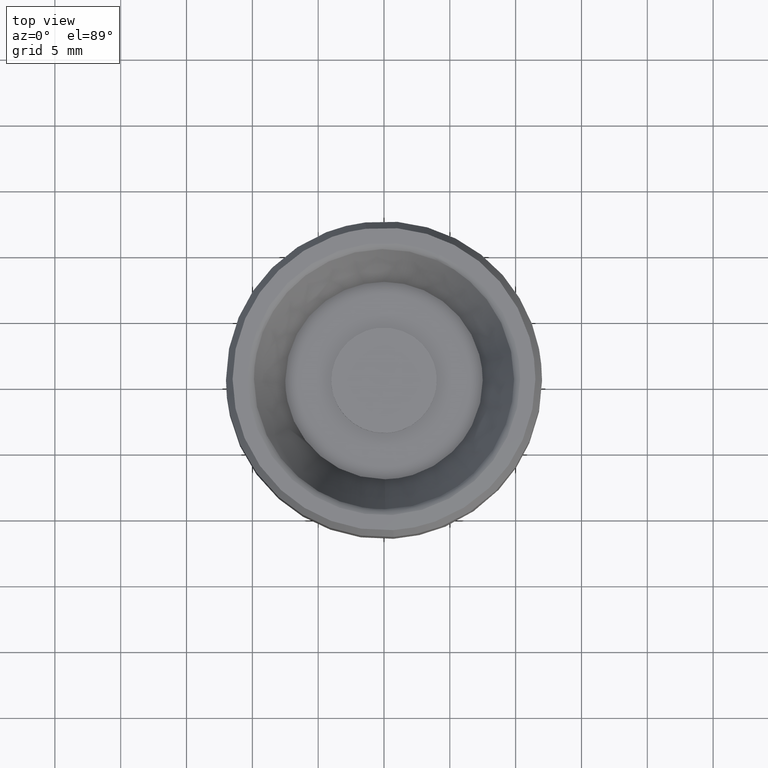
[diagram: clean part render]
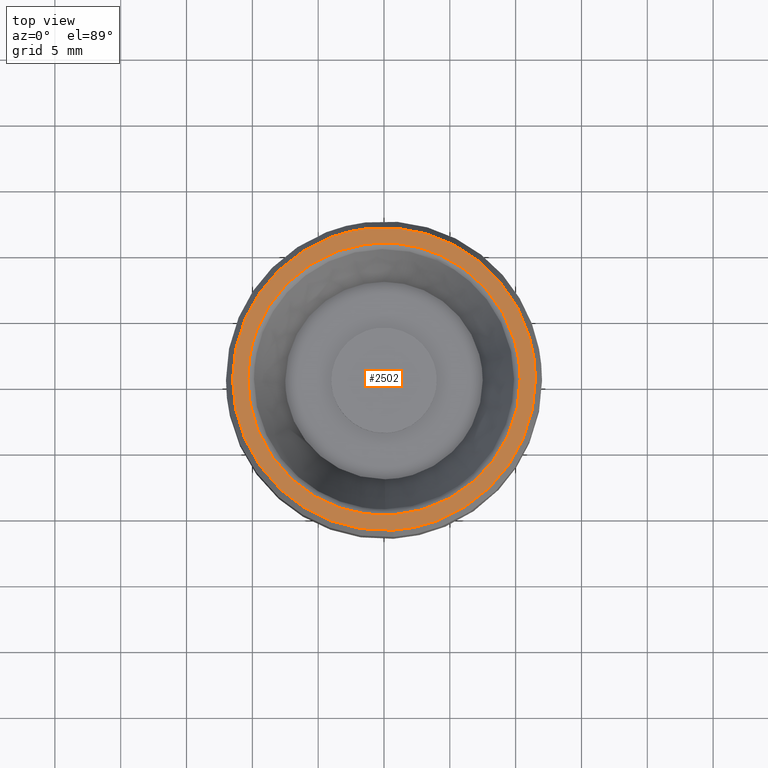
[diagram: same view with one face highlighted and labeled with its STEP entity id]
A machine part, top view. The second image highlights one B-rep face of the part: STEP entity #2502.
In plain terms, the highlighted face is a freeform B-spline surface patch.
Its self-contained STEP definition (entity closure, byte-faithful):
#2039=CARTESIAN_POINT('',(-1.357393698552894,11.419609553182161,15.999999999999970));
#2040=VERTEX_POINT('',#2039);
#2046=CARTESIAN_POINT('',(11.500000000000000,0.0,16.0));
#2047=VERTEX_POINT('',#2046);
#2048=CARTESIAN_POINT('',(-1.357393698552895,11.419609553182159,15.999999999999973));
#2049=CARTESIAN_POINT('',(-0.681077375997138,11.500000000000002,15.999999999999996));
#2050=CARTESIAN_POINT('',(0.0,11.500000000000000,16.0));
#2051=CARTESIAN_POINT('',(11.500000000000000,11.500000000000000,15.999999999999998));
#2052=CARTESIAN_POINT('',(11.500000000000000,0.0,16.0));
#2060=(BOUNDED_CURVE()B_SPLINE_CURVE(2,(#2048,#2049,#2050,#2051,#2052),.UNSPECIFIED.,.F.,.U.)B_SPLINE_CURVE_WITH_KNOTS((3,2,3),(0.229562473515639,0.250000000000000,0.500000000000000),.UNSPECIFIED.)CURVE()GEOMETRIC_REPRESENTATION_ITEM()RATIONAL_B_SPLINE_CURVE((0.956026754187876,0.976055948333642,1.0,0.707106781186548,1.0))REPRESENTATION_ITEM(''));
#2061=EDGE_CURVE('',#2040,#2047,#2060,.T.);
#2063=CARTESIAN_POINT('',(0.702058204658389,-11.478550181851700,15.999999999998630));
#2064=VERTEX_POINT('',#2063);
#2065=CARTESIAN_POINT('',(11.500000000000000,0.0,16.0));
#2066=CARTESIAN_POINT('',(11.499999999999998,-10.818119769401328,16.000000000000004));
#2067=CARTESIAN_POINT('',(0.702058204658389,-11.478550181851697,15.999999999998630));
#2075=(BOUNDED_CURVE()B_SPLINE_CURVE(2,(#2065,#2066,#2067),.UNSPECIFIED.,.F.,.U.)B_SPLINE_CURVE_WITH_KNOTS((3,3),(0.500000000000000,0.739332962241743),.UNSPECIFIED.)CURVE()GEOMETRIC_REPRESENTATION_ITEM()RATIONAL_B_SPLINE_CURVE((1.0,0.719603993283430,0.976072041672719))REPRESENTATION_ITEM(''));
#2076=EDGE_CURVE('',#2047,#2064,#2075,.T.);
#2109=CARTESIAN_POINT('',(-11.500000000000000,0.0,16.0));
#2110=VERTEX_POINT('',#2109);
#2111=CARTESIAN_POINT('',(0.702058204658389,-11.478550181851700,15.999999999998632));
#2112=CARTESIAN_POINT('',(0.351356777941285,-11.500000000000004,16.000000000000004));
#2113=CARTESIAN_POINT('',(0.0,-11.500000000000000,16.0));
#2114=CARTESIAN_POINT('',(-11.500000000000000,-11.500000000000000,15.999999999999998));
#2115=CARTESIAN_POINT('',(-11.500000000000000,0.0,16.0));
#2123=(BOUNDED_CURVE()B_SPLINE_CURVE(2,(#2111,#2112,#2113,#2114,#2115),.UNSPECIFIED.,.F.,.U.)B_SPLINE_CURVE_WITH_KNOTS((3,2,3),(0.739332962241743,0.750000000000000,1.0),.UNSPECIFIED.)CURVE()GEOMETRIC_REPRESENTATION_ITEM()RATIONAL_B_SPLINE_CURVE((0.976072041672719,0.987502787903118,1.0,0.707106781186548,1.0))REPRESENTATION_ITEM(''));
#2124=EDGE_CURVE('',#2064,#2110,#2123,.T.);
#2126=CARTESIAN_POINT('',(-11.500000000000000,0.0,16.0));
#2127=CARTESIAN_POINT('',(-11.499999999999998,10.214007048440426,16.000000000000007));
#2128=CARTESIAN_POINT('',(-1.357393698552895,11.419609553182159,15.999999999999973));
#2136=(BOUNDED_CURVE()B_SPLINE_CURVE(2,(#2126,#2127,#2128),.UNSPECIFIED.,.F.,.U.)B_SPLINE_CURVE_WITH_KNOTS((3,3),(0.0,0.229562473515639),.UNSPECIFIED.)CURVE()GEOMETRIC_REPRESENTATION_ITEM()RATIONAL_B_SPLINE_CURVE((1.0,0.731050832852906,0.956026754187876))REPRESENTATION_ITEM(''));
#2137=EDGE_CURVE('',#2110,#2040,#2136,.T.);
#2177=CARTESIAN_POINT('',(-9.664137561953176,3.686510465524437,16.0));
#2178=VERTEX_POINT('',#2177);
#2192=CARTESIAN_POINT('',(-10.343399549122459,0.0,16.0));
#2193=VERTEX_POINT('',#2192);
#2194=CARTESIAN_POINT('',(-10.343399549122459,0.0,16.0));
#2195=CARTESIAN_POINT('',(-10.343399549122458,1.905834310126145,15.999999999999996));
#2196=CARTESIAN_POINT('',(-9.664137561953174,3.686510465524438,16.000000000000007));
#2204=(BOUNDED_CURVE()B_SPLINE_CURVE(2,(#2194,#2195,#2196),.UNSPECIFIED.,.F.,.U.)B_SPLINE_CURVE_WITH_KNOTS((3,3),(0.0,0.060525011914331),.UNSPECIFIED.)CURVE()GEOMETRIC_REPRESENTATION_ITEM()RATIONAL_B_SPLINE_CURVE((1.0,0.929090537766756,0.892515443905560))REPRESENTATION_ITEM(''));
#2205=EDGE_CURVE('',#2193,#2178,#2204,.T.);
#2207=CARTESIAN_POINT('',(10.343399549122459,0.0,16.0));
#2208=VERTEX_POINT('',#2207);
#2209=CARTESIAN_POINT('',(10.343399549122459,0.0,16.0));
#2210=CARTESIAN_POINT('',(10.343399549122459,-10.343399549122459,15.999999999999998));
#2211=CARTESIAN_POINT('',(0.0,-10.343399549122459,16.0));
#2212=CARTESIAN_POINT('',(-10.343399549122459,-10.343399549122459,15.999999999999998));
#2213=CARTESIAN_POINT('',(-10.343399549122459,0.0,16.0));
#2221=(BOUNDED_CURVE()B_SPLINE_CURVE(2,(#2209,#2210,#2211,#2212,#2213),.UNSPECIFIED.,.F.,.U.)B_SPLINE_CURVE_WITH_KNOTS((3,2,3),(0.500000000000000,0.750000000000000,1.0),.UNSPECIFIED.)CURVE()GEOMETRIC_REPRESENTATION_ITEM()RATIONAL_B_SPLINE_CURVE((1.0,0.707106781186548,1.0,0.707106781186548,1.0))REPRESENTATION_ITEM(''));
#2222=EDGE_CURVE('',#2208,#2193,#2221,.T.);
#2224=CARTESIAN_POINT('',(4.233190528467972,9.437479122193572,16.0));
#2225=VERTEX_POINT('',#2224);
#2226=CARTESIAN_POINT('',(4.233190528467973,9.437479122193572,16.000000000000004));
#2227=CARTESIAN_POINT('',(10.343399549122458,6.696738865397268,16.000000000000007));
#2228=CARTESIAN_POINT('',(10.343399549122459,0.0,16.0));
#2236=(BOUNDED_CURVE()B_SPLINE_CURVE(2,(#2226,#2227,#2228),.UNSPECIFIED.,.F.,.U.)B_SPLINE_CURVE_WITH_KNOTS((3,3),(0.319501085436788,0.500000000000000),.UNSPECIFIED.)CURVE()GEOMETRIC_REPRESENTATION_ITEM()RATIONAL_B_SPLINE_CURVE((0.882422160154872,0.788532367684986,1.0))REPRESENTATION_ITEM(''));
#2237=EDGE_CURVE('',#2225,#2208,#2236,.T.);
#2280=CARTESIAN_POINT('',(-9.664137561953176,3.686510465524437,15.999999999999996));
#2281=CARTESIAN_POINT('',(-7.124780985614992,10.343399549122458,16.0));
#2282=CARTESIAN_POINT('',(0.0,10.343399549122459,16.0));
#2283=CARTESIAN_POINT('',(2.213530638912292,10.343399549122461,16.000000000000004));
#2284=CARTESIAN_POINT('',(4.233190528467973,9.437479122193572,16.000000000000004));
#2292=(BOUNDED_CURVE()B_SPLINE_CURVE(2,(#2280,#2281,#2282,#2283,#2284),.UNSPECIFIED.,.F.,.U.)B_SPLINE_CURVE_WITH_KNOTS((3,2,3),(0.060525011914331,0.250000000000000,0.319501085436788),.UNSPECIFIED.)CURVE()GEOMETRIC_REPRESENTATION_ITEM()RATIONAL_B_SPLINE_CURVE((0.892515443905560,0.778016243419791,1.0,0.918574413501562,0.882422160154872))REPRESENTATION_ITEM(''));
#2293=EDGE_CURVE('',#2178,#2225,#2292,.T.);
#2485=CARTESIAN_POINT('',(12.648849955421539,-12.648570271550851,16.0));
#2486=CARTESIAN_POINT('',(-12.648850572329611,-12.648570271550851,16.0));
#2487=CARTESIAN_POINT('',(12.648849955421539,12.648640804707240,16.0));
#2488=CARTESIAN_POINT('',(-12.648850572329611,12.648640804707240,16.0));
#2489=B_SPLINE_SURFACE_WITH_KNOTS('',1,1,((#2485,#2487),(#2486,#2488)),.UNSPECIFIED.,.F.,.F.,.U.,(2,2),(2,2),(0.0,25.297700527751150),(0.0,25.297211076258080),.UNSPECIFIED.);
#2490=ORIENTED_EDGE('',*,*,#2124,.F.);
#2491=ORIENTED_EDGE('',*,*,#2076,.F.);
#2492=ORIENTED_EDGE('',*,*,#2061,.F.);
#2493=ORIENTED_EDGE('',*,*,#2137,.F.);
#2494=EDGE_LOOP('',(#2490,#2491,#2492,#2493));
#2495=FACE_OUTER_BOUND('',#2494,.T.);
#2496=ORIENTED_EDGE('',*,*,#2222,.T.);
#2497=ORIENTED_EDGE('',*,*,#2205,.T.);
#2498=ORIENTED_EDGE('',*,*,#2293,.T.);
#2499=ORIENTED_EDGE('',*,*,#2237,.T.);
#2500=EDGE_LOOP('',(#2496,#2497,#2498,#2499));
#2501=FACE_BOUND('',#2500,.T.);
#2502=ADVANCED_FACE('',(#2495,#2501),#2489,.F.);